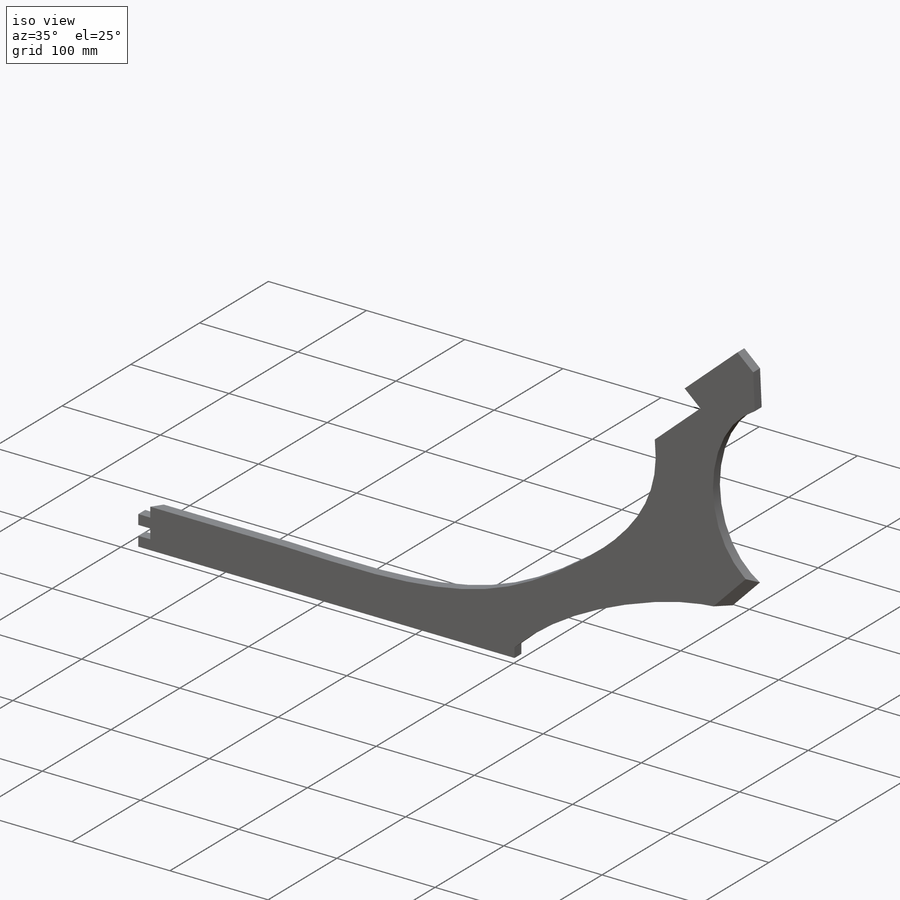
[diagram: iso view]
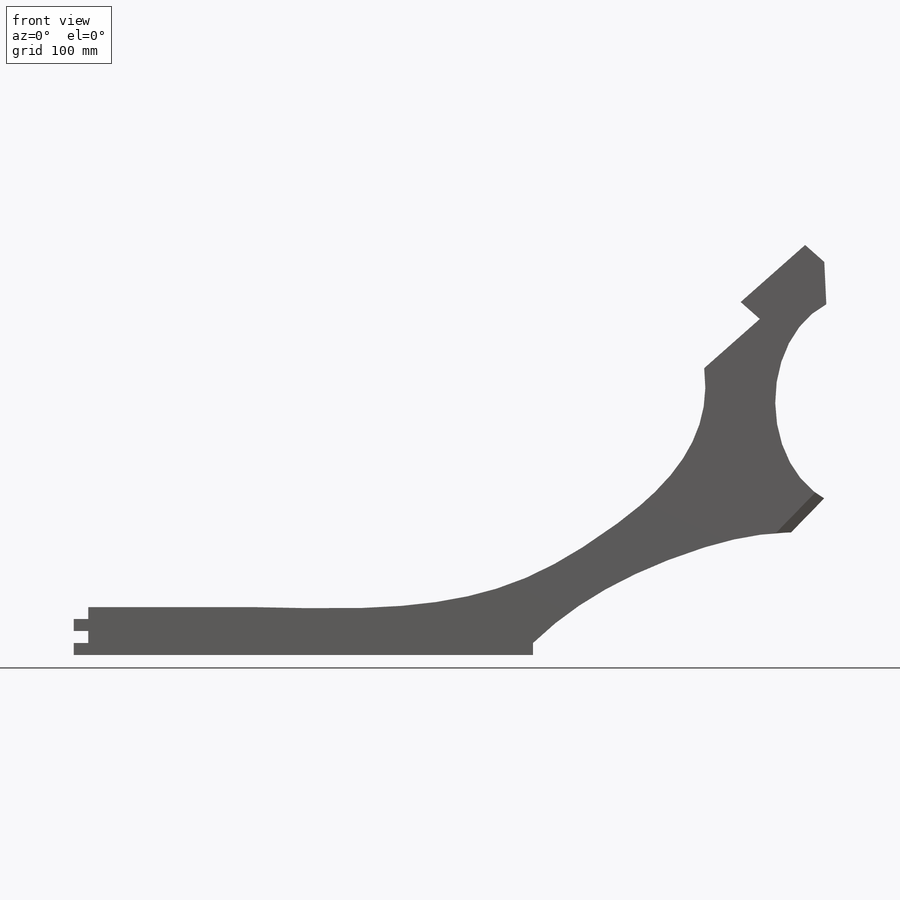
[diagram: front view]
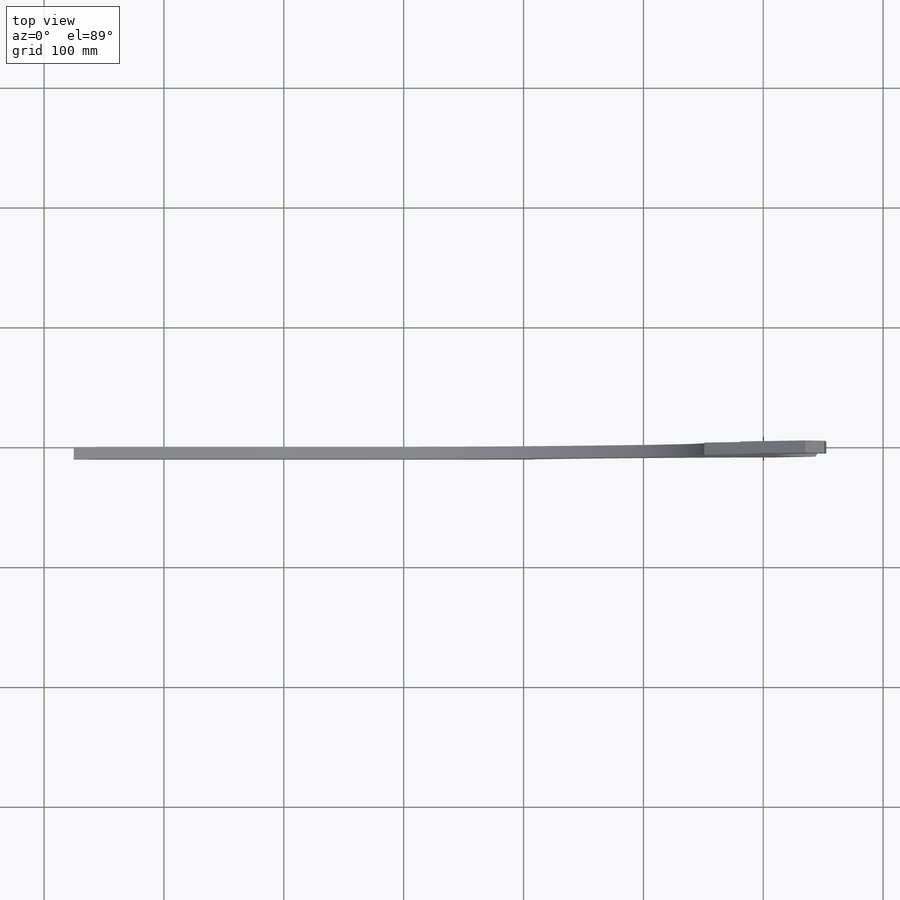
[diagram: top view]
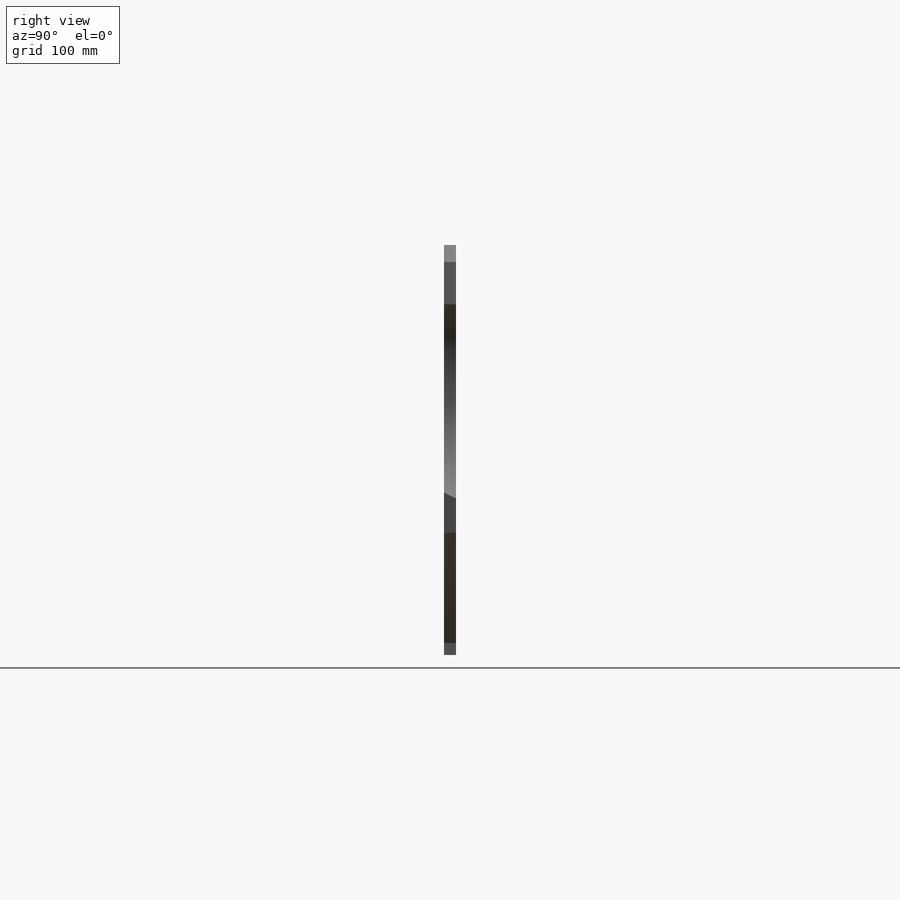
[diagram: right view]
SOLIDWORKS PART (.sldprt)
format: sldprt  version: not decoded by parser v0  size: 227,840 bytes
history: native  units: mm
features: sketch x5, cut_extrude x4, plane x3, material x1, extrude x1 (+11 scaffold rows collapsed)
feature tree (25):
  scaffold x11  (default folders/planes/origin — collapsed)
  material  "Material <not specified>"
  sketch  "Sketch1"  dims[D1=10.0mm]
  extrude  "Boss-Extrude1"  Depth=10mm
  plane  "Plane1"
  sketch  "Sketch2"
  cut_extrude  "Cut-Extrude1"  Depth=20mm
  sketch  "Sketch4"
  cut_extrude  "Cut-Extrude2"  Depth=10mm
  plane  "Plane2"
  sketch  "Sketch5"  dims[D1=10.0mm D2=10.0mm D3=10.0mm]
  cut_extrude  "Cut-Extrude5"  Depth=30mm
  plane  "Plane3"
  sketch  "Sketch6"
  cut_extrude  "Cut-Extrude6"  Depth=10mm
decode coverage: 7 of 10 modeling features carry decoded parameters
note: suppression state not decoded; provenance and decode notes live in map.json
